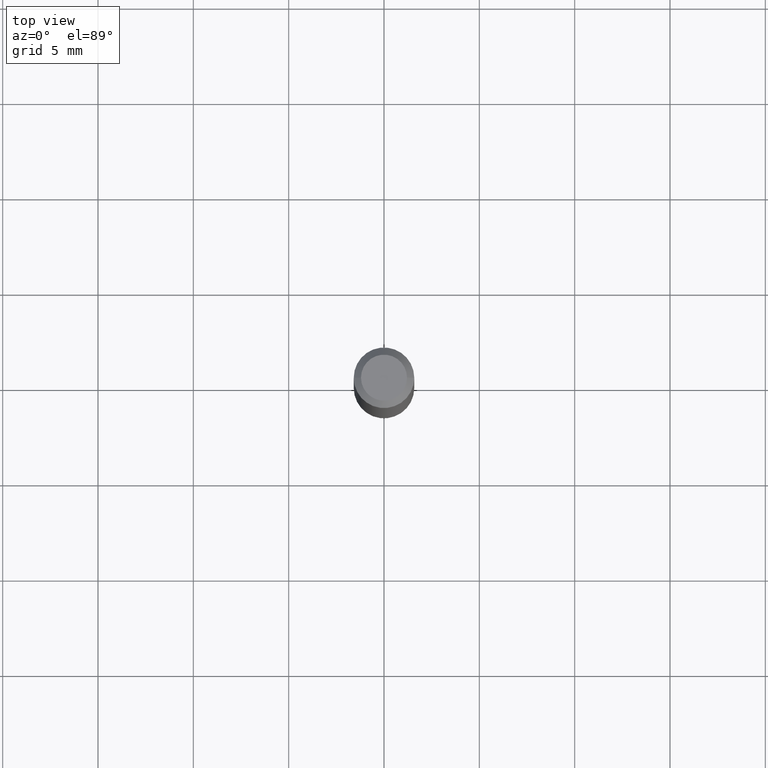
[diagram: clean part render]
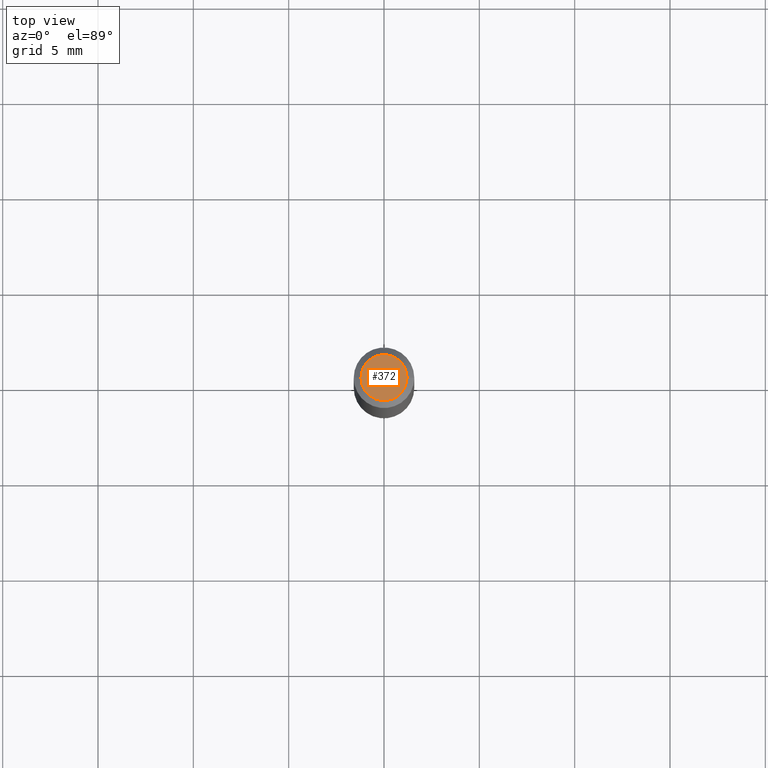
[diagram: same view with one face highlighted and labeled with its STEP entity id]
A machine part, top view. The second image highlights one B-rep face of the part: STEP entity #372.
In plain terms, the highlighted planar face has unit normal (0, -0, -1).
Its self-contained STEP definition (entity closure, byte-faithful):
#39 = CIRCLE ( 'NONE', #425, 0.04749999999999999362 ) ;
#63 = DIRECTION ( 'NONE',  ( 1.000000000000000000, -6.982962677686267499E-15, 4.852736867747366768E-29 ) ) ;
#68 = CARTESIAN_POINT ( 'NONE',  ( 0.04749999999999999362, -4.035134999187572707E-16, 2.926320210456084224E-16 ) ) ;
#71 = CARTESIAN_POINT ( 'NONE',  ( -7.156224791579416592E-45, 1.021719240628687565E-30, 2.926320210456058586E-16 ) ) ;
#92 = AXIS2_PLACEMENT_3D ( 'NONE', #71, #332, #384 ) ;
#95 = DIRECTION ( 'NONE',  ( 2.438088387897960049E-29, -3.491481338843145188E-15, -1.000000000000000000 ) ) ;
#123 = CARTESIAN_POINT ( 'NONE',  ( 3.316907271900976096E-16, 0.04749999999999999362, -1.952935307224647024E-17 ) ) ;
#125 = DIRECTION ( 'NONE',  ( -1.000000000000000000, 6.982962677686265922E-15, -4.876176775795935793E-29 ) ) ;
#136 = PLANE ( 'NONE',  #264 ) ;
#174 = ORIENTED_EDGE ( 'NONE', *, *, #466, .T. ) ;
#194 = CARTESIAN_POINT ( 'NONE',  ( -7.156224791579416592E-45, 1.021719240628687565E-30, 2.926320210456058586E-16 ) ) ;
#236 = CIRCLE ( 'NONE', #92, 0.04749999999999999362 ) ;
#246 = VERTEX_POINT ( 'NONE', #68 ) ;
#264 = AXIS2_PLACEMENT_3D ( 'NONE', #123, #95, #125 ) ;
#285 = CARTESIAN_POINT ( 'NONE',  ( -0.04749999999999999362, 3.578768372314215929E-16, 2.926320210456034427E-16 ) ) ;
#332 = DIRECTION ( 'NONE',  ( -2.445468806185136597E-29, 3.491481338843145583E-15, 1.000000000000000000 ) ) ;
#355 = VERTEX_POINT ( 'NONE', #285 ) ;
#358 = EDGE_LOOP ( 'NONE', ( #405, #174 ) ) ;
#372 = ADVANCED_FACE ( 'NONE', ( #437 ), #136, .F. ) ;
#384 = DIRECTION ( 'NONE',  ( 1.000000000000000000, -6.982962677686267499E-15, 4.852736867747366768E-29 ) ) ;
#386 = DIRECTION ( 'NONE',  ( -2.445468806185136597E-29, 3.491481338843145583E-15, 1.000000000000000000 ) ) ;
#405 = ORIENTED_EDGE ( 'NONE', *, *, #428, .T. ) ;
#425 = AXIS2_PLACEMENT_3D ( 'NONE', #194, #386, #63 ) ;
#428 = EDGE_CURVE ( 'NONE', #355, #246, #236, .T. ) ;
#437 = FACE_OUTER_BOUND ( 'NONE', #358, .T. ) ;
#466 = EDGE_CURVE ( 'NONE', #246, #355, #39, .T. ) ;